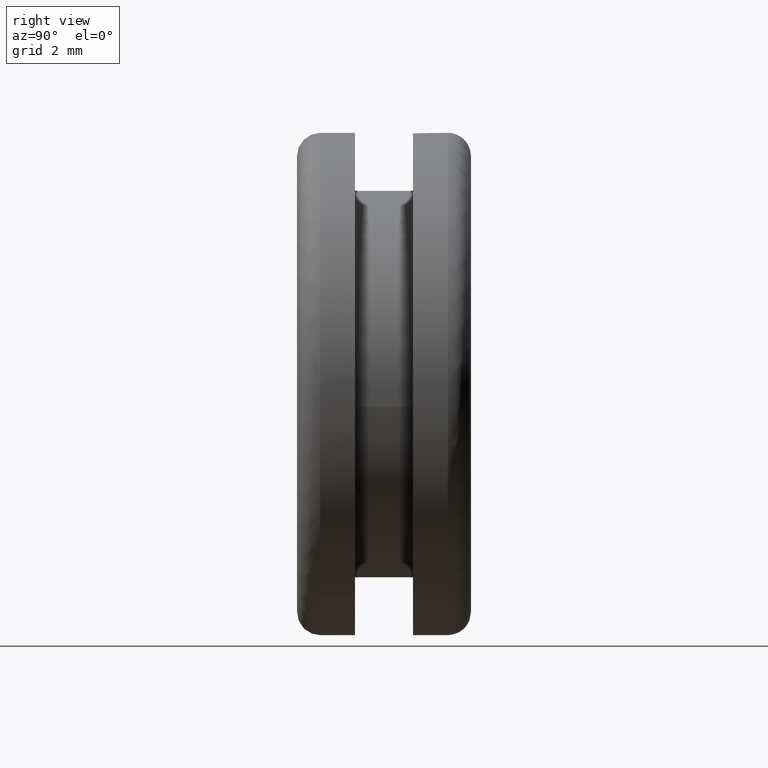
[diagram: clean part render]
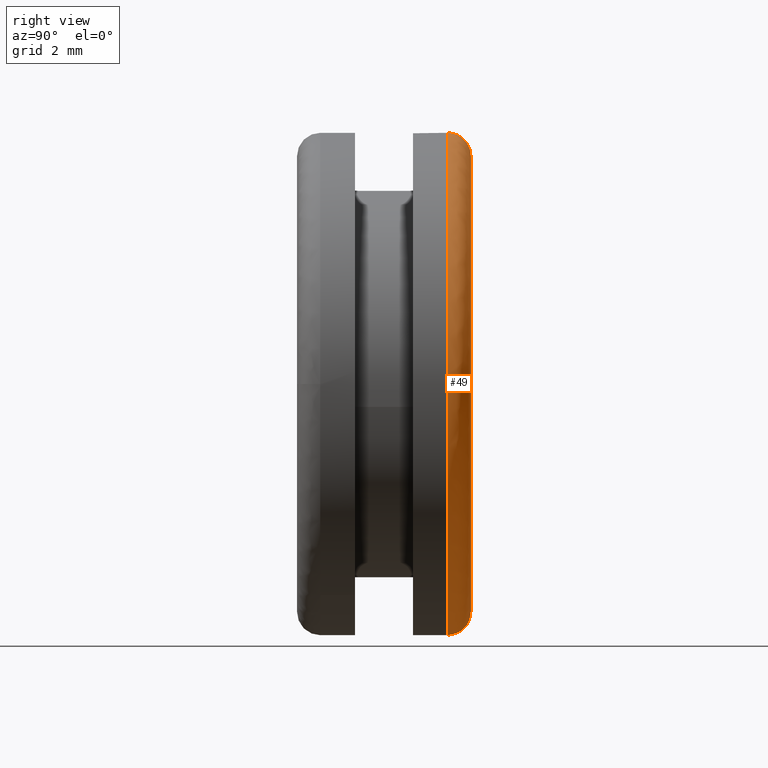
[diagram: same view with one face highlighted and labeled with its STEP entity id]
A machine part, right view. The second image highlights one B-rep face of the part: STEP entity #49.
In plain terms, the highlighted face is a freeform B-spline surface patch.
Its self-contained STEP definition (entity closure, byte-faithful):
#49=ADVANCED_FACE('',(#151),#150,.T.);
#150=( BOUNDED_SURFACE() B_SPLINE_SURFACE( 2,2,((#290,#291,#292,#293,#294),(#295,#296,#297,#298,#299),(#300,#301,#302,#303,#304),(#305,#306,#307,#308,#309),(#310,#311,#312,#313,#314)), .UNSPECIFIED.,.F.,.F.,.F.) B_SPLINE_SURFACE_WITH_KNOTS((3,2,3),(3,2,3),(0.00000000000E+000,5.00000000000E-001,1.00000000000E+000),(0.00000000000E+000,5.00000000000E-001,1.00000000000E+000), .UNSPECIFIED. ) GEOMETRIC_REPRESENTATION_ITEM() RATIONAL_B_SPLINE_SURFACE(((1.00000000000E+000,7.07106781187E-001,1.00000000000E+000,7.07106781187E-001,1.00000000000E+000),(7.07106781187E-001,5.00000000000E-001,7.07106781187E-001,5.00000000000E-001,7.07106781187E-001),(1.00000000000E+000,7.07106781187E-001,1.00000000000E+000,7.07106781187E-001,1.00000000000E+000),(7.07106781187E-001,5.00000000000E-001,7.07106781187E-001,5.00000000000E-001,7.07106781187E-001),(1.00000000000E+000,7.07106781187E-001,1.00000000000E+000,7.07106781187E-001,1.00000000000E+000))) REPRESENTATION_ITEM('') SURFACE() );
#151=FACE_OUTER_BOUND('',#315,.T.);
#290=CARTESIAN_POINT('',(-5.20419186395E-015,3.90000000000E+000,-5.30000000000E+000));
#291=CARTESIAN_POINT('',(-5.69084832398E-015,4.50000000000E+000,-5.30000000000E+000));
#292=CARTESIAN_POINT('',(-5.69085075070E-015,4.50000000000E+000,-5.90000000000E+000));
#293=CARTESIAN_POINT('',(-5.69085317742E-015,4.50000000000E+000,-6.50000000000E+000));
#294=CARTESIAN_POINT('',(-5.20419671739E-015,3.90000000000E+000,-6.50000000000E+000));
#295=CARTESIAN_POINT('',(5.30000000000E+000,3.90000000000E+000,-5.30000000000E+000));
#296=CARTESIAN_POINT('',(5.30000000000E+000,4.50000000000E+000,-5.30000000000E+000));
#297=CARTESIAN_POINT('',(5.90000000000E+000,4.50000000000E+000,-5.90000000000E+000));
#298=CARTESIAN_POINT('',(6.50000000000E+000,4.50000000000E+000,-6.50000000000E+000));
#299=CARTESIAN_POINT('',(6.50000000000E+000,3.90000000000E+000,-6.50000000000E+000));
#300=CARTESIAN_POINT('',(5.30000000000E+000,3.90000000000E+000,-1.76717875976E-014));
#301=CARTESIAN_POINT('',(5.30000000000E+000,4.50000000000E+000,-2.17153104684E-014));
#302=CARTESIAN_POINT('',(5.90000000000E+000,4.50000000000E+000,-2.17520522991E-014));
#303=CARTESIAN_POINT('',(6.50000000000E+000,4.50000000000E+000,-2.17887941298E-014));
#304=CARTESIAN_POINT('',(6.50000000000E+000,3.90000000000E+000,-1.77452712590E-014));
#305=CARTESIAN_POINT('',(5.30000000000E+000,3.90000000000E+000,5.30000000000E+000));
#306=CARTESIAN_POINT('',(5.30000000000E+000,4.50000000000E+000,5.30000000000E+000));
#307=CARTESIAN_POINT('',(5.90000000000E+000,4.50000000000E+000,5.90000000000E+000));
#308=CARTESIAN_POINT('',(6.50000000000E+000,4.50000000000E+000,6.50000000000E+000));
#309=CARTESIAN_POINT('',(6.50000000000E+000,3.90000000000E+000,6.50000000000E+000));
#310=CARTESIAN_POINT('',(-4.55508618836E-015,3.90000000000E+000,5.30000000000E+000));
#311=CARTESIAN_POINT('',(-5.04174264838E-015,4.50000000000E+000,5.30000000000E+000));
#312=CARTESIAN_POINT('',(-4.96826141372E-015,4.50000000000E+000,5.90000000000E+000));
#313=CARTESIAN_POINT('',(-4.89478017905E-015,4.50000000000E+000,6.50000000000E+000));
#314=CARTESIAN_POINT('',(-4.40812371902E-015,3.90000000000E+000,6.50000000000E+000));
#315=EDGE_LOOP('',(#444,#445,#446,#447,#448));
#444=ORIENTED_EDGE('',*,*,#499,.T.);
#445=ORIENTED_EDGE('',*,*,#525,.T.);
#446=ORIENTED_EDGE('',*,*,#527,.F.);
#447=ORIENTED_EDGE('',*,*,#528,.F.);
#448=ORIENTED_EDGE('',*,*,#526,.F.);
#499=EDGE_CURVE('',#627,#619,#628,.T.);
#525=EDGE_CURVE('',#619,#798,#805,.T.);
#526=EDGE_CURVE('',#627,#784,#811,.T.);
#527=EDGE_CURVE('',#817,#798,#818,.T.);
#528=EDGE_CURVE('',#784,#817,#824,.T.);
#619=VERTEX_POINT('',#926);
#627=VERTEX_POINT('',#932);
#628=CIRCLE('',#936,5.90000000070E+000);
#784=VERTEX_POINT('',#1035);
#798=VERTEX_POINT('',#1045);
#805=(BOUNDED_CURVE() B_SPLINE_CURVE(2,(#1050,#1051,#1052),.UNSPECIFIED.,.F.,.F.) B_SPLINE_CURVE_WITH_KNOTS((3,3),(5.00000000000E-001,1.00000000000E+000),.UNSPECIFIED.) CURVE() GEOMETRIC_REPRESENTATION_ITEM() RATIONAL_B_SPLINE_CURVE((1.00000000000E+000,7.07106781187E-001,1.00000000000E+000)) REPRESENTATION_ITEM('') );
#811=(BOUNDED_CURVE() B_SPLINE_CURVE(3,(#1053,#1054,#1055,#1056),.UNSPECIFIED.,.F.,.F.) B_SPLINE_CURVE_WITH_KNOTS((4,4),(4.99999961450E-001,1.00000000000E+000),.UNSPECIFIED.) CURVE() GEOMETRIC_REPRESENTATION_ITEM() RATIONAL_B_SPLINE_CURVE((1.00000000000E+000,1.00000000000E+000,1.00000000000E+000,1.00000000000E+000)) REPRESENTATION_ITEM('') );
#817=VERTEX_POINT('',#1057);
#818=CIRCLE('',#1061,6.50000000000E+000);
#824=CIRCLE('',#1065,6.50000000000E+000);
#926=CARTESIAN_POINT('',(-5.80077222970E-015,4.50000000000E+000,5.90000000140E+000));
#932=CARTESIAN_POINT('',(6.12307882634E-004,4.50000000000E+000,-5.89999996823E+000));
#933=CARTESIAN_POINT('',(1.38755673618E-012,4.50000000000E+000,6.99001745375E-010));
#934=DIRECTION('',(-2.19525544382E-016,-1.00000000000E+000,-4.42275138600E-015));
#935=DIRECTION('',(-1.00000000000E+000,2.19525544906E-016,-1.18474952071E-010));
#936=AXIS2_PLACEMENT_3D('',#933,#934,#935);
#1035=CARTESIAN_POINT('',(0.00000000000E+000,3.90000000000E+000,-6.50000000000E+000));
#1045=CARTESIAN_POINT('',(-5.96323979441E-015,3.90000000000E+000,6.50000000000E+000));
#1050=CARTESIAN_POINT('',(-6.41334463671E-015,4.50000000000E+000,5.90000000000E+000));
#1051=CARTESIAN_POINT('',(-6.48682101794E-015,4.50000000000E+000,6.50000000000E+000));
#1052=CARTESIAN_POINT('',(-6.00016455791E-015,3.90000000000E+000,6.50000000000E+000));
#1053=CARTESIAN_POINT('',(-4.73695160306E-015,4.50000000000E+000,-5.89999993458E+000));
#1054=CARTESIAN_POINT('',(-4.76309711887E-015,4.46568545656E+000,-6.26568539333E+000));
#1055=CARTESIAN_POINT('',(-4.66441061735E-015,4.26568545656E+000,-6.46568541514E+000));
#1056=CARTESIAN_POINT('',(-4.44089209850E-015,3.90000000000E+000,-6.50000000000E+000));
#1057=CARTESIAN_POINT('',(2.28650763707E+000,3.90000000000E+000,6.08456102161E+000));
#1058=CARTESIAN_POINT('',(1.55431223448E-014,3.90000000000E+000,2.92654789291E-012));
#1059=DIRECTION('',(5.42707238191E-016,-1.00000000000E+000,-2.03842110799E-016));
#1060=DIRECTION('',(-3.51617753693E-001,-2.46519032882E-032,-9.36143661672E-001));
#1061=AXIS2_PLACEMENT_3D('',#1058,#1059,#1060);
#1062=CARTESIAN_POINT('',(1.55431223448E-014,3.90000000000E+000,2.92654789291E-012));
#1063=DIRECTION('',(5.42707238191E-016,-1.00000000000E+000,-2.03842110799E-016));
#1064=DIRECTION('',(-3.51617753693E-001,-2.46519032882E-032,-9.36143661672E-001));
#1065=AXIS2_PLACEMENT_3D('',#1062,#1063,#1064);